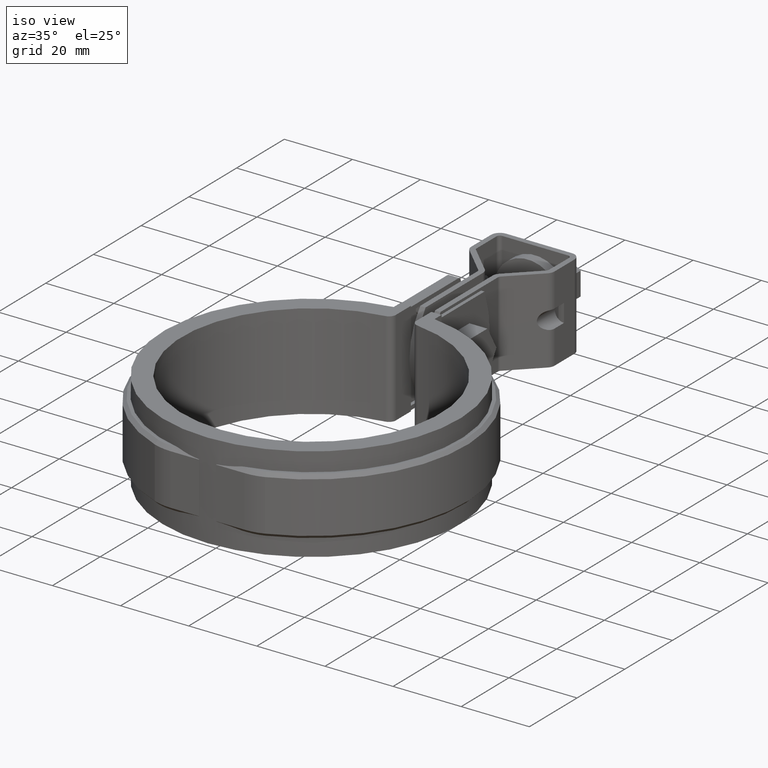
[diagram: clean part render]
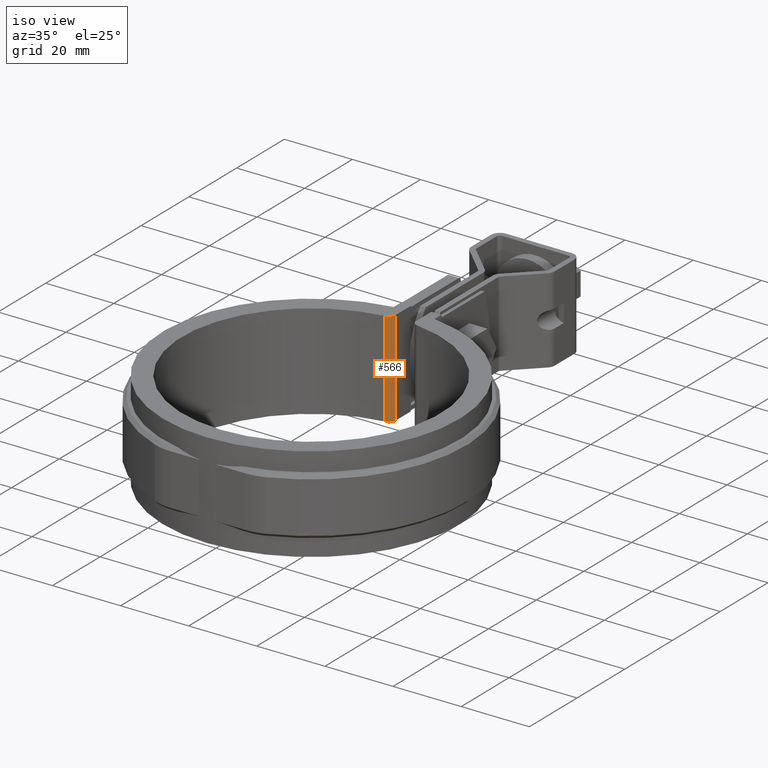
[diagram: same view with one face highlighted and labeled with its STEP entity id]
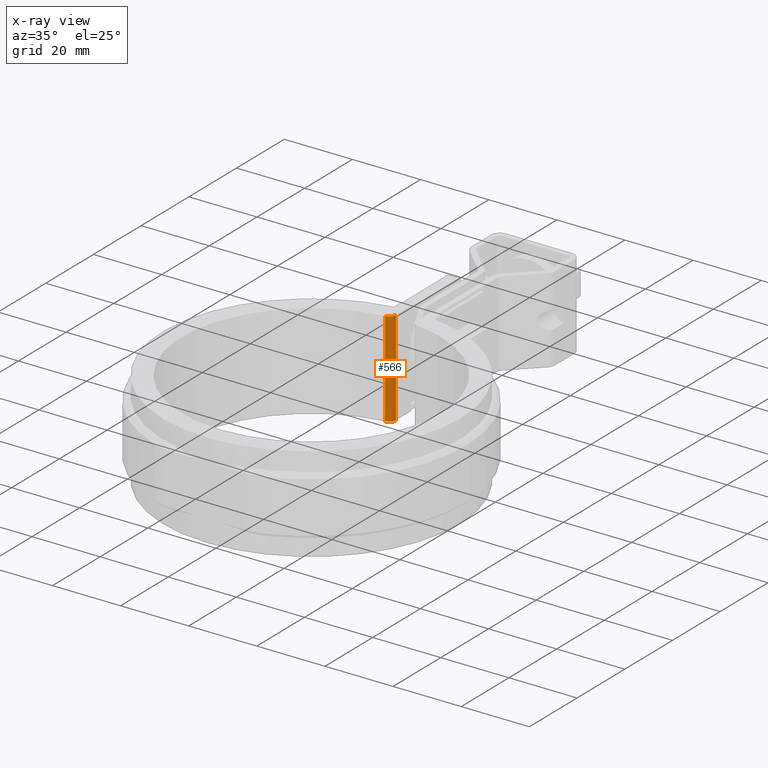
[diagram: x-ray of the same camera — body ghosted, the highlighted face saturated]
A machine part, iso view. The second image highlights one B-rep face of the part: STEP entity #566.
The next image is the same camera in x-ray: the body ghosted, the highlighted face saturated — about 0% of this face is hidden behind the body in this view.
In plain terms, the highlighted cylindrical surface (edge-blend (fillet) strip) has radius 2 mm, axis along (0, 0, -1).
Its self-contained STEP definition (entity closure, byte-faithful):
#566 = ADVANCED_FACE( '', ( #1042 ), #1043, .T. );
#1042 = FACE_OUTER_BOUND( '', #2350, .T. );
#1043 = CYLINDRICAL_SURFACE( '', #2351, 2.00000000000000 );
#2350 = EDGE_LOOP( '', ( #5131, #5132, #5133, #5134 ) );
#2351 = AXIS2_PLACEMENT_3D( '', #5135, #5136, #5137 );
#5131 = ORIENTED_EDGE( '', *, *, #7562, .F. );
#5132 = ORIENTED_EDGE( '', *, *, #7563, .F. );
#5133 = ORIENTED_EDGE( '', *, *, #7564, .F. );
#5134 = ORIENTED_EDGE( '', *, *, #7506, .F. );
#5135 = CARTESIAN_POINT( '', ( -5.00000000000002, 39.6862696659689, -14.0000000000000 ) );
#5136 = DIRECTION( '', ( 0.000000000000000, 0.000000000000000, -1.00000000000000 ) );
#5137 = DIRECTION( '', ( 1.00000000000000, 0.000000000000000, 0.000000000000000 ) );
#7506 = EDGE_CURVE( '', #8727, #8729, #8730, .T. );
#7562 = EDGE_CURVE( '', #8805, #8727, #8806, .T. );
#7563 = EDGE_CURVE( '', #8807, #8805, #8808, .F. );
#7564 = EDGE_CURVE( '', #8729, #8807, #8809, .F. );
#8727 = VERTEX_POINT( '', #12404 );
#8729 = VERTEX_POINT( '', #12406 );
#8730 = LINE( '', #12407, #12408 );
#8805 = VERTEX_POINT( '', #12589 );
#8806 = CIRCLE( '', #12590, 2.00000000000000 );
#8807 = VERTEX_POINT( '', #12591 );
#8808 = LINE( '', #12592, #12593 );
#8809 = CIRCLE( '', #12594, 2.00000000000000 );
#12404 = CARTESIAN_POINT( '', ( -4.75000000000002, 37.7019561826704, -14.0000000000000 ) );
#12406 = CARTESIAN_POINT( '', ( -4.75000000000002, 37.7019561826704, 14.0000000000000 ) );
#12407 = CARTESIAN_POINT( '', ( -4.75000000000002, 37.7019561826704, -14.0000000000000 ) );
#12408 = VECTOR( '', #14543, 1000.00000000000 );
#12589 = CARTESIAN_POINT( '', ( -3.00000000000002, 39.6862696659689, -14.0000000000000 ) );
#12590 = AXIS2_PLACEMENT_3D( '', #14596, #14597, #14598 );
#12591 = CARTESIAN_POINT( '', ( -3.00000000000002, 39.6862696659689, 14.0000000000000 ) );
#12592 = CARTESIAN_POINT( '', ( -3.00000000000002, 39.6862696659689, -14.0000000000000 ) );
#12593 = VECTOR( '', #14599, 1000.00000000000 );
#12594 = AXIS2_PLACEMENT_3D( '', #14600, #14601, #14602 );
#14543 = DIRECTION( '', ( 0.000000000000000, 0.000000000000000, 1.00000000000000 ) );
#14596 = CARTESIAN_POINT( '', ( -5.00000000000002, 39.6862696659689, -14.0000000000000 ) );
#14597 = DIRECTION( '', ( 0.000000000000000, 0.000000000000000, -1.00000000000000 ) );
#14598 = DIRECTION( '', ( -1.00000000000000, 0.000000000000000, 0.000000000000000 ) );
#14599 = DIRECTION( '', ( 0.000000000000000, 0.000000000000000, 1.00000000000000 ) );
#14600 = CARTESIAN_POINT( '', ( -5.00000000000002, 39.6862696659689, 14.0000000000000 ) );
#14601 = DIRECTION( '', ( 0.000000000000000, 0.000000000000000, -1.00000000000000 ) );
#14602 = DIRECTION( '', ( -1.00000000000000, 0.000000000000000, 0.000000000000000 ) );